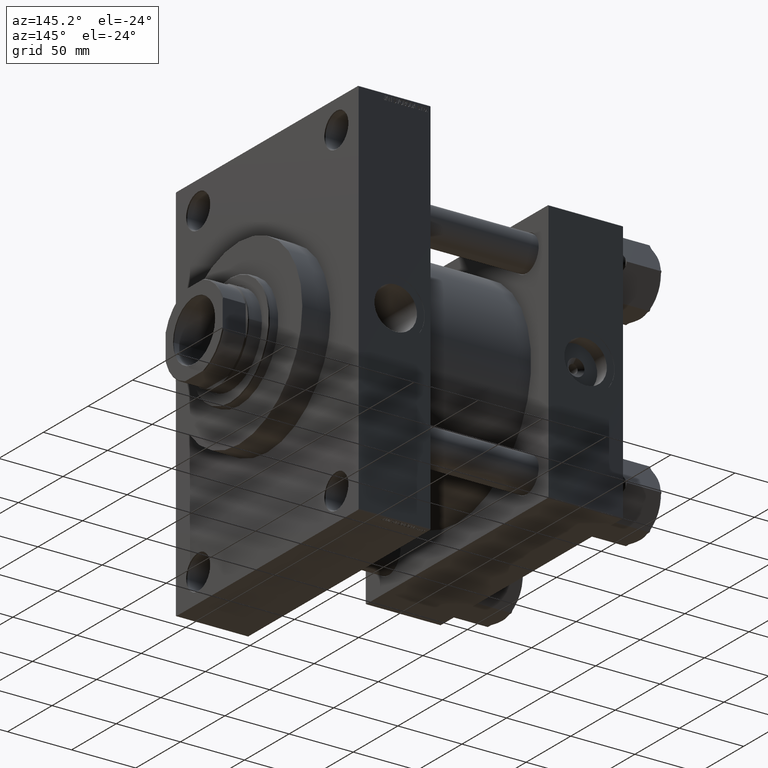
[diagram: clean part render]
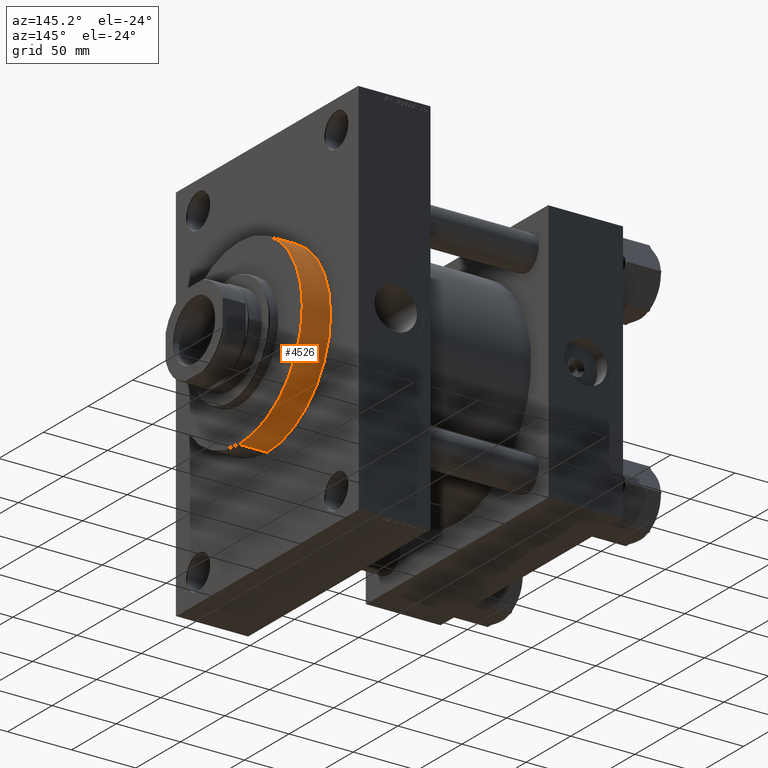
[diagram: same view with one face highlighted and labeled with its STEP entity id]
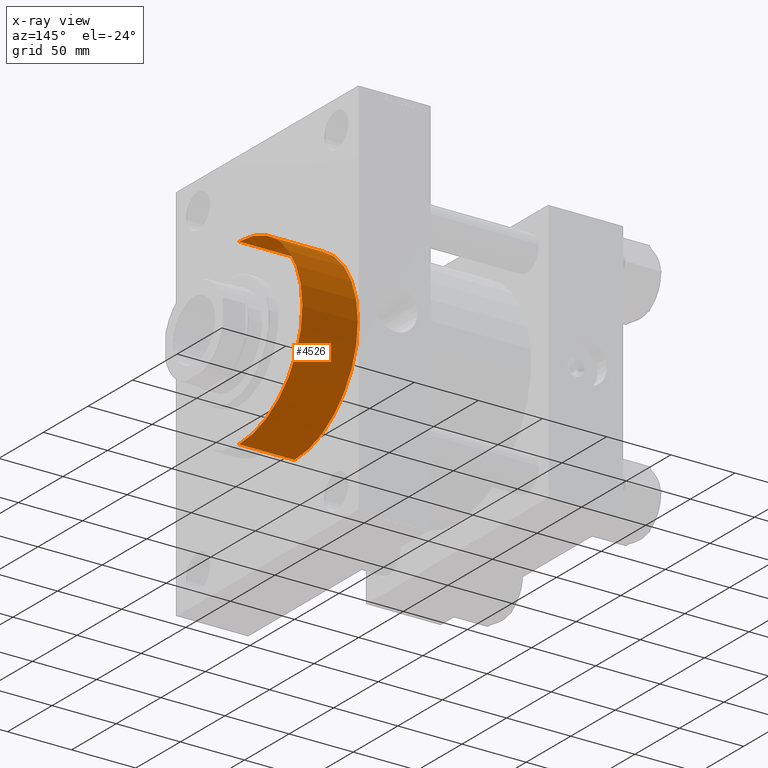
[diagram: x-ray of the same camera — body ghosted, the highlighted face saturated]
A machine part, auxiliary view. The second image highlights one B-rep face of the part: STEP entity #4526.
The next image is the same camera in x-ray: the body ghosted, the highlighted face saturated — about 1% of this face is hidden behind the body in this view.
In plain terms, the highlighted cylindrical surface (partial cylindrical patch) has radius 71 mm, axis along (-1, 0, 0).
Its self-contained STEP definition (entity closure, byte-faithful):
#98 = AXIS2_PLACEMENT_3D ( 'NONE', #8942, #34253, #42210 ) ;
#1129 = CARTESIAN_POINT ( 'NONE',  ( -71.00000000000001421, 0.000000000000000000, 43.25999999999999801 ) ) ;
#3181 = CARTESIAN_POINT ( 'NONE',  ( 0.000000000000000000, 0.000000000000000000, 43.25999999999999801 ) ) ;
#4211 = ORIENTED_EDGE ( 'NONE', *, *, #47648, .F. ) ;
#4526 = ADVANCED_FACE ( 'NONE', ( #32583 ), #6795, .T. ) ;
#5121 = CARTESIAN_POINT ( 'NONE',  ( 71.00000000000001421, 8.694992273946208141E-15, 0.000000000000000000 ) ) ;
#6441 = DIRECTION ( 'NONE',  ( -0.000000000000000000, -0.000000000000000000, -1.000000000000000000 ) ) ;
#6795 = CYLINDRICAL_SURFACE ( 'NONE', #19766, 71.00000000000001421 ) ;
#7829 = VERTEX_POINT ( 'NONE', #33470 ) ;
#8942 = CARTESIAN_POINT ( 'NONE',  ( 0.000000000000000000, 0.000000000000000000, 0.000000000000000000 ) ) ;
#10924 = DIRECTION ( 'NONE',  ( 0.000000000000000000, 0.000000000000000000, 1.000000000000000000 ) ) ;
#11125 = DIRECTION ( 'NONE',  ( -1.000000000000000000, 0.000000000000000000, 0.000000000000000000 ) ) ;
#13467 = VERTEX_POINT ( 'NONE', #22958 ) ;
#15838 = DIRECTION ( 'NONE',  ( -0.000000000000000000, -0.000000000000000000, -1.000000000000000000 ) ) ;
#17031 = EDGE_CURVE ( 'NONE', #13467, #42584, #19323, .T. ) ;
#17990 = LINE ( 'NONE', #32700, #31372 ) ;
#19323 = CIRCLE ( 'NONE', #98, 71.00000000000001421 ) ;
#19766 = AXIS2_PLACEMENT_3D ( 'NONE', #3181, #21487, #11125 ) ;
#20095 = VERTEX_POINT ( 'NONE', #24986 ) ;
#21487 = DIRECTION ( 'NONE',  ( -0.000000000000000000, -0.000000000000000000, -1.000000000000000000 ) ) ;
#22958 = CARTESIAN_POINT ( 'NONE',  ( -71.00000000000001421, 0.000000000000000000, 0.000000000000000000 ) ) ;
#24986 = CARTESIAN_POINT ( 'NONE',  ( 71.00000000000001421, 8.694992273946208141E-15, 43.25999999999999801 ) ) ;
#27317 = ORIENTED_EDGE ( 'NONE', *, *, #35626, .T. ) ;
#31372 = VECTOR ( 'NONE', #6441, 1000.000000000000000 ) ;
#32583 = FACE_OUTER_BOUND ( 'NONE', #40901, .T. ) ;
#32700 = CARTESIAN_POINT ( 'NONE',  ( 71.00000000000001421, 8.694992273946208141E-15, 43.25999999999999801 ) ) ;
#33333 = DIRECTION ( 'NONE',  ( 1.000000000000000000, 0.000000000000000000, 0.000000000000000000 ) ) ;
#33470 = CARTESIAN_POINT ( 'NONE',  ( -71.00000000000001421, 0.000000000000000000, 43.25999999999999801 ) ) ;
#34253 = DIRECTION ( 'NONE',  ( 0.000000000000000000, 0.000000000000000000, 1.000000000000000000 ) ) ;
#35290 = AXIS2_PLACEMENT_3D ( 'NONE', #44184, #10924, #33333 ) ;
#35626 = EDGE_CURVE ( 'NONE', #7829, #13467, #44787, .T. ) ;
#35782 = VECTOR ( 'NONE', #15838, 1000.000000000000000 ) ;
#39119 = CIRCLE ( 'NONE', #35290, 71.00000000000001421 ) ;
#40360 = ORIENTED_EDGE ( 'NONE', *, *, #43148, .F. ) ;
#40901 = EDGE_LOOP ( 'NONE', ( #40360, #4211, #27317, #42226 ) ) ;
#42210 = DIRECTION ( 'NONE',  ( 1.000000000000000000, 0.000000000000000000, 0.000000000000000000 ) ) ;
#42226 = ORIENTED_EDGE ( 'NONE', *, *, #17031, .T. ) ;
#42584 = VERTEX_POINT ( 'NONE', #5121 ) ;
#43148 = EDGE_CURVE ( 'NONE', #20095, #42584, #17990, .T. ) ;
#44184 = CARTESIAN_POINT ( 'NONE',  ( 0.000000000000000000, 0.000000000000000000, 43.25999999999999801 ) ) ;
#44787 = LINE ( 'NONE', #1129, #35782 ) ;
#47648 = EDGE_CURVE ( 'NONE', #7829, #20095, #39119, .T. ) ;